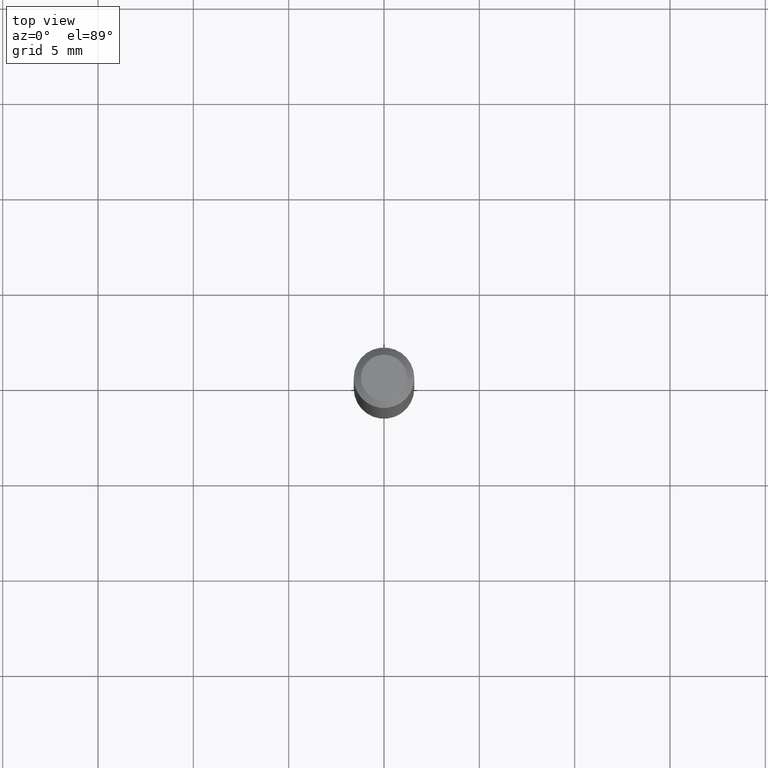
[diagram: clean part render]
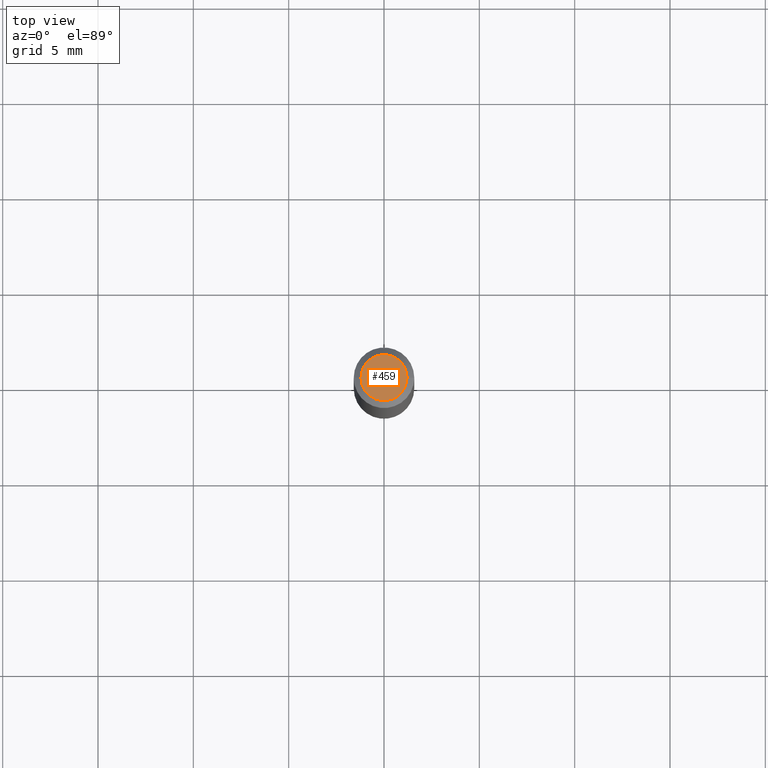
[diagram: same view with one face highlighted and labeled with its STEP entity id]
A machine part, top view. The second image highlights one B-rep face of the part: STEP entity #459.
In plain terms, the highlighted planar face has unit normal (0, -0, -1).
Its self-contained STEP definition (entity closure, byte-faithful):
#1 = ORIENTED_EDGE ( 'NONE', *, *, #266, .T. ) ;
#17 = DIRECTION ( 'NONE',  ( 2.438088387897960049E-29, -3.491481338843145188E-15, -1.000000000000000000 ) ) ;
#22 = DIRECTION ( 'NONE',  ( 1.000000000000000000, -6.982962677686267499E-15, 4.852736867747366768E-29 ) ) ;
#34 = DIRECTION ( 'NONE',  ( -2.445468806185136597E-29, 3.491481338843145583E-15, 1.000000000000000000 ) ) ;
#53 = PLANE ( 'NONE',  #313 ) ;
#87 = CARTESIAN_POINT ( 'NONE',  ( -6.039856226162565090E-45, 8.623313963198306787E-31, 2.469815280770059421E-16 ) ) ;
#94 = AXIS2_PLACEMENT_3D ( 'NONE', #87, #446, #22 ) ;
#121 = VERTEX_POINT ( 'NONE', #248 ) ;
#157 = DIRECTION ( 'NONE',  ( -1.000000000000000000, 6.982962677686265922E-15, -4.876176775795935793E-29 ) ) ;
#158 = CIRCLE ( 'NONE', #354, 0.04749999999999999362 ) ;
#193 = CARTESIAN_POINT ( 'NONE',  ( 3.316907271900976096E-16, 0.04749999999999999362, -4.235459955654642541E-17 ) ) ;
#226 = CARTESIAN_POINT ( 'NONE',  ( -0.04749999999999999362, 3.578768372314215436E-16, 2.469815280770035755E-16 ) ) ;
#248 = CARTESIAN_POINT ( 'NONE',  ( 0.04749999999999999362, -4.035134999187574186E-16, 2.469815280770085059E-16 ) ) ;
#251 = EDGE_LOOP ( 'NONE', ( #1, #466 ) ) ;
#266 = EDGE_CURVE ( 'NONE', #457, #121, #158, .T. ) ;
#267 = CIRCLE ( 'NONE', #94, 0.04749999999999999362 ) ;
#278 = CARTESIAN_POINT ( 'NONE',  ( -6.039856226162565090E-45, 8.623313963198306787E-31, 2.469815280770059421E-16 ) ) ;
#313 = AXIS2_PLACEMENT_3D ( 'NONE', #193, #17, #157 ) ;
#354 = AXIS2_PLACEMENT_3D ( 'NONE', #278, #34, #424 ) ;
#369 = FACE_OUTER_BOUND ( 'NONE', #251, .T. ) ;
#424 = DIRECTION ( 'NONE',  ( 1.000000000000000000, -6.982962677686267499E-15, 4.852736867747366768E-29 ) ) ;
#437 = EDGE_CURVE ( 'NONE', #121, #457, #267, .T. ) ;
#446 = DIRECTION ( 'NONE',  ( -2.445468806185136597E-29, 3.491481338843145583E-15, 1.000000000000000000 ) ) ;
#457 = VERTEX_POINT ( 'NONE', #226 ) ;
#459 = ADVANCED_FACE ( 'NONE', ( #369 ), #53, .F. ) ;
#466 = ORIENTED_EDGE ( 'NONE', *, *, #437, .T. ) ;